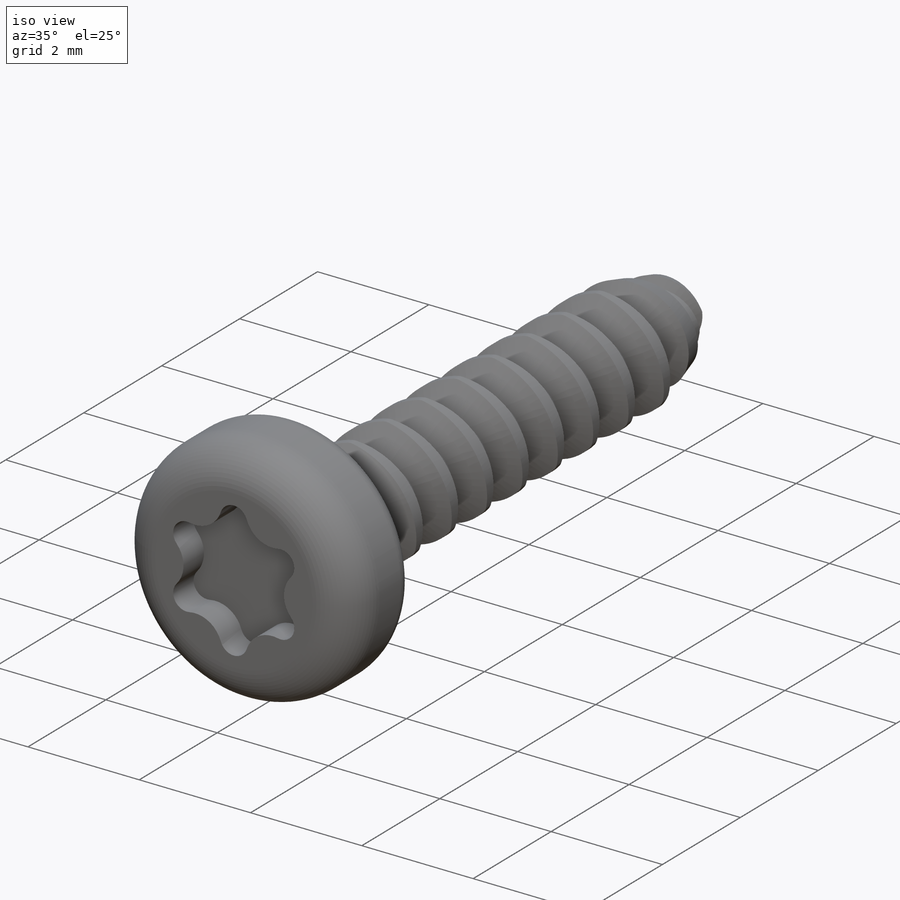
[diagram: iso view]
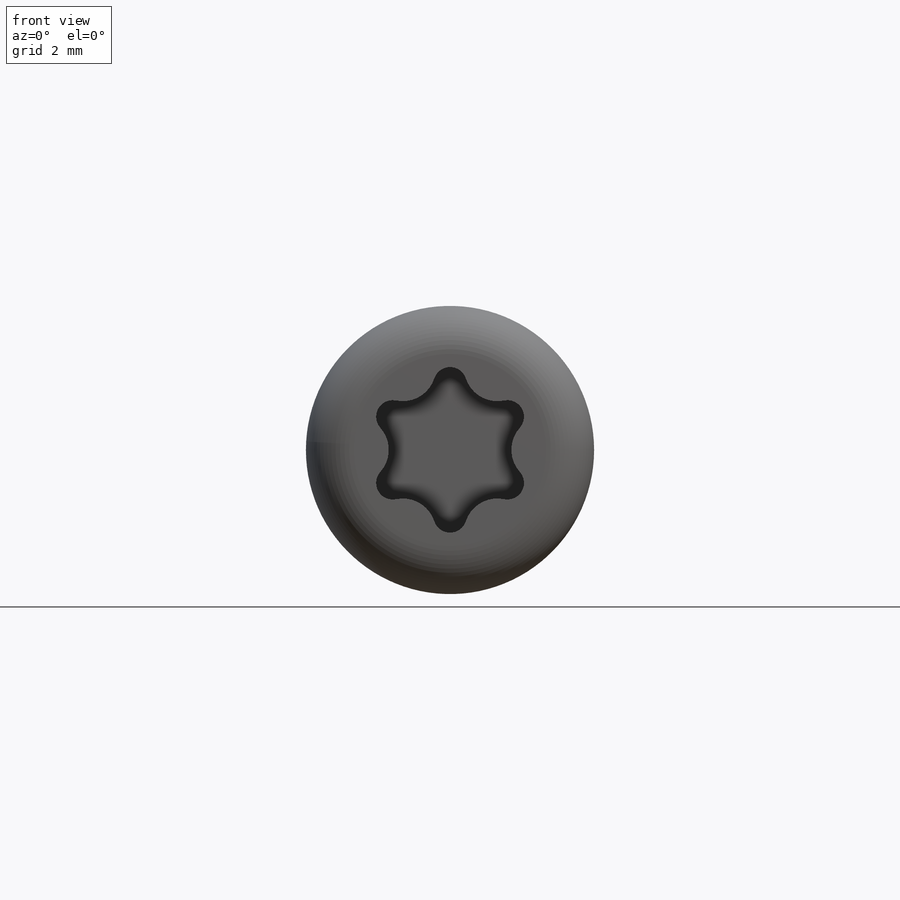
[diagram: front view]
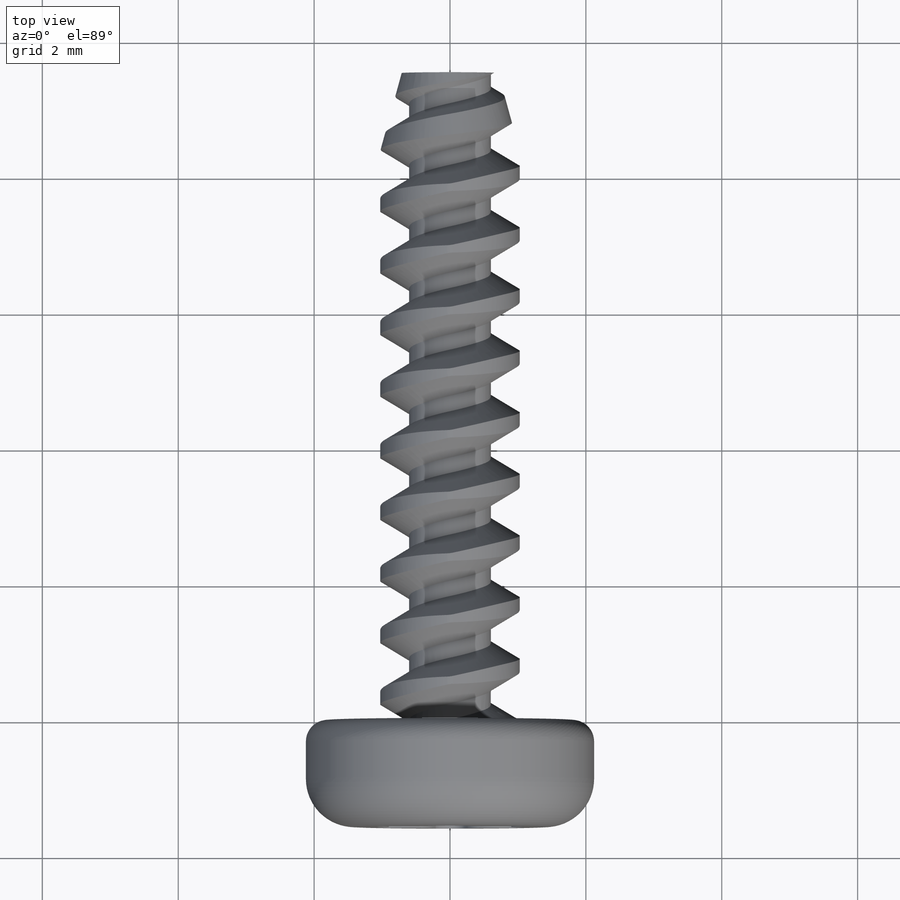
[diagram: top view]
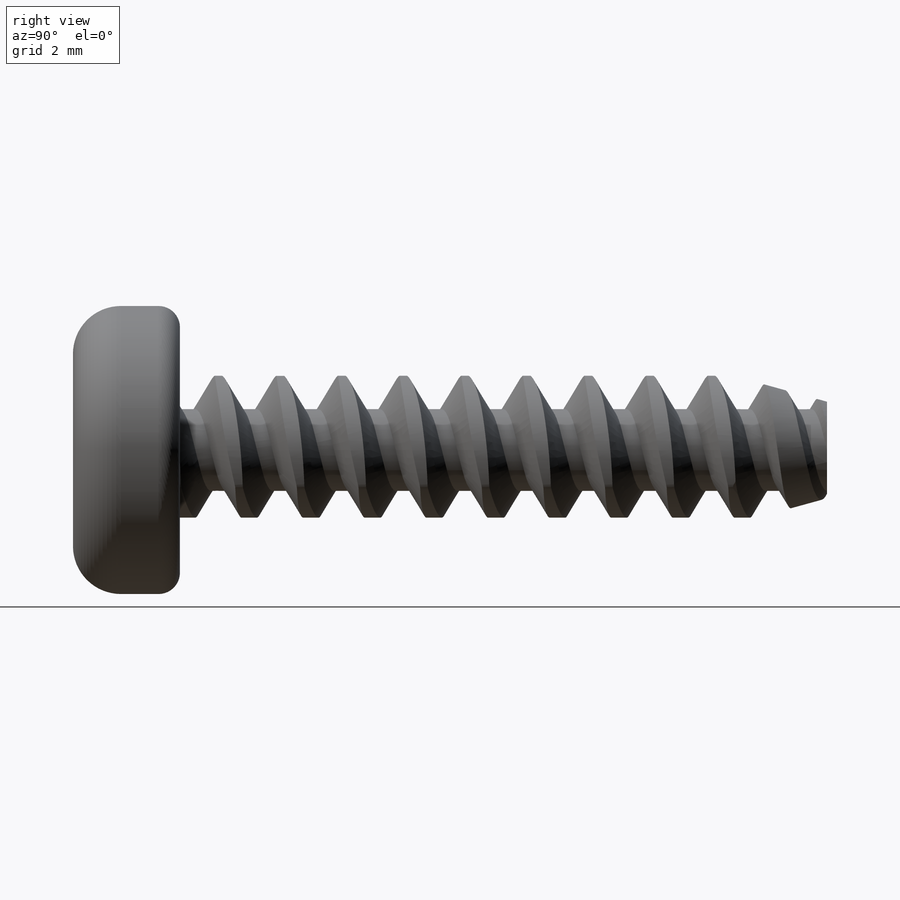
[diagram: right view]
SOLIDWORKS PART (.sldprt)
format: sldprt  version: not decoded by parser v0  size: 878,592 bytes
history: native  units: mm
features: sketch x8, plane x2, cut_revolve x2, cut_extrude x2, material x1, extrude x1, helix x1, revolve x1, sweep x1, pattern_linear x1, pattern_circular x1 (+12 scaffold rows collapsed)
feature tree (33):
  scaffold x12  (default folders/planes/origin — collapsed)
  material  "Material <not specified>"
  sketch  "Sketch1"  dims[Washer OD=8.3312mm Head Dia=4.2418mm Hex=6.35mm]
  extrude  "Extrude3"  Depth=1.5748mm Head Ht=1.5748mm
  plane  "Plane1"  Offset=0mm
  sketch  "Sketch11"  dims[c1.D1=0.254mm c1.D2=~1.642533mm c1.D3=~1.947333mm c2.D2=~1.66218mm c3.D2=5.0deg c3.D1=~3.294374mm c4.D1=100.0deg c5.D1=0.254mm c5.D2=~0.357143mm c5.D3=2.5mm c6.D1=2.5mm c7.D1=41.0deg c8.D1=~0.31496mm c8.D2=0.254mm c8.D3=0.254mm]
  cut_revolve  "Cut-Revolve3"  Angle=360deg
  sketch  "Sketch14"  dims[c1.D1=~0.564716mm c2.D1=60.0deg c2.Pitch=~0.907143mm c2.D3=~0.226786mm c2.D4=~0.113393mm c2.D5=2.0701mm c2.Major Dia=4.13mm c2.Screw Dia=4.826mm c3.Screw Dia=2.1844mm]
  plane  "Plane2"
  sketch  "Sketch15"
  helix  "Helix/Spiral1"  Pitch=1.360714mm
  sketch  "Sketch17"  dims[Body Length=9.525mm]
  revolve  "Revolve1"  Angle=360deg
  sweep  "Sweep1"
  pattern_linear  "LPattern3"  Count1=10 Count2=2 Spacing1=0.907143mm Spacing2=0.907143mm
  sketch  "Sketch13"  dims[c1.D1=~1.645991mm c2.D1=25.0deg c2.D2=4.1656mm c2.D3=38.1mm c3.D1=0.127mm c3.D2=~1.58056mm c4.D2=45.0deg c5.D2=~3.84166mm c6.D2=22.5deg c6.D3=2.54mm c6.Point Dia=1.4224mm c6.Point Lg=1.3843mm]
  cut_revolve  "Cut-Revolve4"  Angle=360deg
  sketch  "Sketch12"  dims[c1.Cross Recess Dia=4.064mm c1.Phillips Dia=~6.129867mm c1.M=2.4384mm c1.D2=~0.24384mm c1.D3=~0.48768mm c1.Cross recess Width=0.7112mm c1.Phillips Width=0.7112mm c2.Phillips Width=~1.225973mm c2.D1=~0.993949mm c3.D1=60.0deg]
  cut_extrude  "Cut-Extrude1"  Depth=0.524933mm
  pattern_circular  "CirPattern1"  Count=6 Angle=60deg
  sketch  "Sketch18"  dims[c1.D3=~0.21844mm c1.D4=~1.228725mm c1.D1=~1.848987mm c2.D1=120.0deg c2.D2=1.2065mm c3.D2=120.0deg c3.D4=~0.468121mm]
  cut_extrude  "Cut-Extrude3"  [1 undecoded]
decode coverage: 15 of 18 modeling features carry decoded parameters
note: ~ marks probable driven/reference dimensions
note: 1 parameter value undecoded
note: suppression state not decoded; provenance and decode notes live in map.json
